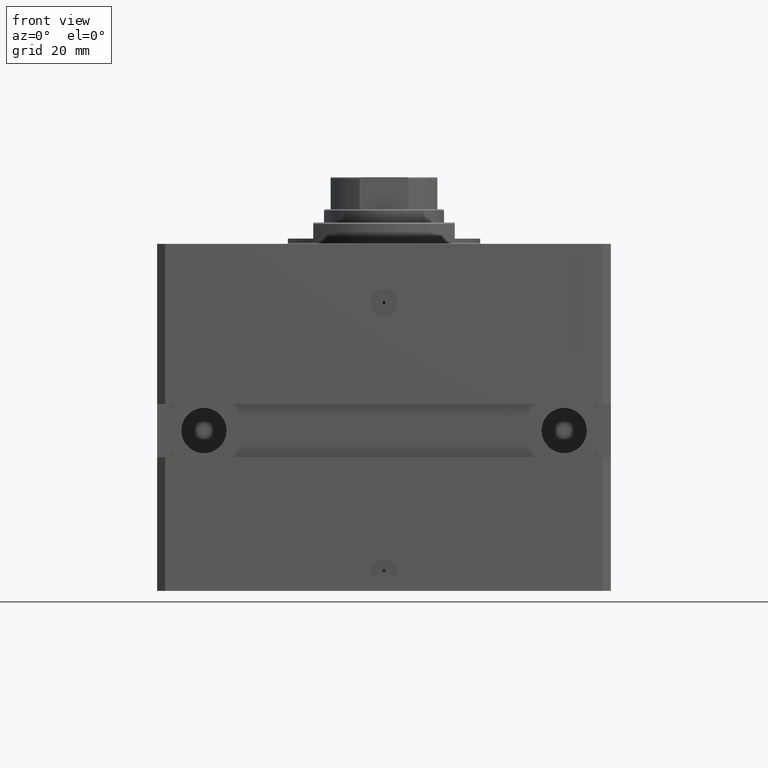
[diagram: clean part render]
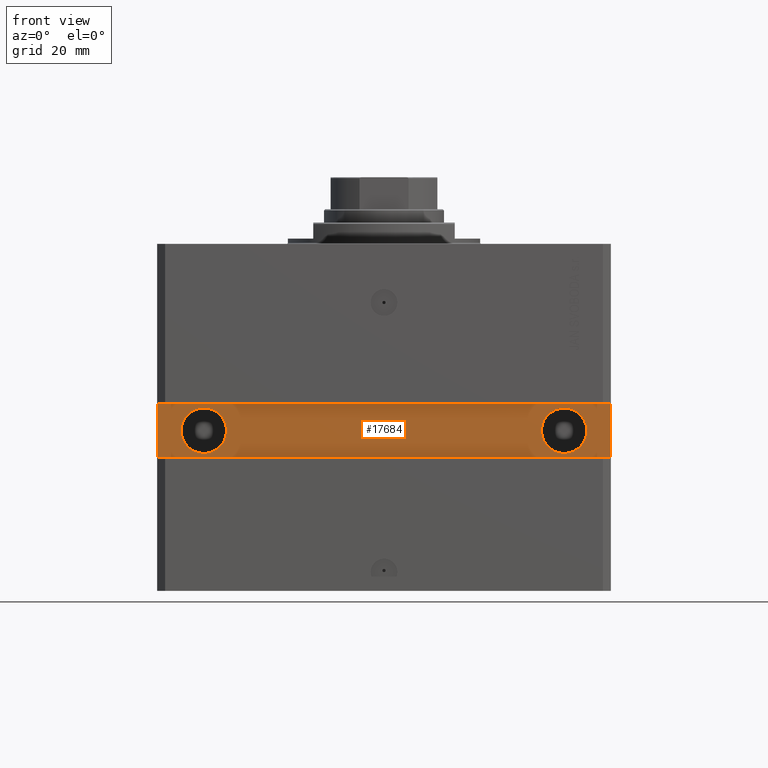
[diagram: same view with one face highlighted and labeled with its STEP entity id]
A machine part, front view. The second image highlights one B-rep face of the part: STEP entity #17684.
In plain terms, the highlighted planar face has unit normal (0, -1, 0).
Its self-contained STEP definition (entity closure, byte-faithful):
#287 = AXIS2_PLACEMENT_3D ( 'NONE', #15050, #45165, #26300 ) ;
#544 = FACE_BOUND ( 'NONE', #3176, .T. ) ;
#758 = AXIS2_PLACEMENT_3D ( 'NONE', #15197, #26701, #22302 ) ;
#1083 = EDGE_LOOP ( 'NONE', ( #9057, #12583 ) ) ;
#1547 = ORIENTED_EDGE ( 'NONE', *, *, #3225, .T. ) ;
#1859 = CIRCLE ( 'NONE', #14381, 8.500000000000000000 ) ;
#2360 = EDGE_CURVE ( 'NONE', #30379, #19704, #37229, .T. ) ;
#3176 = EDGE_LOOP ( 'NONE', ( #32283, #10011 ) ) ;
#3225 = EDGE_CURVE ( 'NONE', #48187, #42201, #41106, .T. ) ;
#4580 = CARTESIAN_POINT ( 'NONE',  ( -85.00000000000001421, -65.00000000000001421, -80.00000000000001421 ) ) ;
#7447 = FACE_BOUND ( 'NONE', #1083, .T. ) ;
#7683 = FACE_OUTER_BOUND ( 'NONE', #30441, .T. ) ;
#8765 = CARTESIAN_POINT ( 'NONE',  ( -85.00000000000001421, -65.00000000000001421, -60.00000000000002842 ) ) ;
#9057 = ORIENTED_EDGE ( 'NONE', *, *, #13415, .F. ) ;
#10011 = ORIENTED_EDGE ( 'NONE', *, *, #17182, .F. ) ;
#11799 = VECTOR ( 'NONE', #31147, 1000.000000000000000 ) ;
#12583 = ORIENTED_EDGE ( 'NONE', *, *, #48035, .F. ) ;
#12786 = CARTESIAN_POINT ( 'NONE',  ( 85.00000000000001421, -64.99999999999998579, -59.99999999999998579 ) ) ;
#13415 = EDGE_CURVE ( 'NONE', #31784, #15652, #28815, .T. ) ;
#14381 = AXIS2_PLACEMENT_3D ( 'NONE', #33535, #48227, #25694 ) ;
#14918 = ORIENTED_EDGE ( 'NONE', *, *, #17862, .T. ) ;
#15050 = CARTESIAN_POINT ( 'NONE',  ( 67.50000000000002842, -64.99999999999998579, -70.00000000000000000 ) ) ;
#15197 = CARTESIAN_POINT ( 'NONE',  ( 67.50000000000002842, -64.99999999999998579, -70.00000000000000000 ) ) ;
#15652 = VERTEX_POINT ( 'NONE', #25590 ) ;
#15730 = CARTESIAN_POINT ( 'NONE',  ( 1.084072457370145048E-14, -65.00000000000000000, 0.000000000000000000 ) ) ;
#15965 = CARTESIAN_POINT ( 'NONE',  ( -85.00000000000001421, -65.00000000000001421, -80.00000000000001421 ) ) ;
#16840 = DIRECTION ( 'NONE',  ( 1.000000000000000000, 0.000000000000000000, 0.000000000000000000 ) ) ;
#17182 = EDGE_CURVE ( 'NONE', #46761, #39948, #33655, .T. ) ;
#17684 = ADVANCED_FACE ( 'NONE', ( #544, #7447, #7683 ), #34356, .T. ) ;
#17757 = CARTESIAN_POINT ( 'NONE',  ( 85.00000000000001421, -64.99999999999998579, -80.00000000000001421 ) ) ;
#17862 = EDGE_CURVE ( 'NONE', #19704, #48187, #35071, .T. ) ;
#19704 = VERTEX_POINT ( 'NONE', #42650 ) ;
#20745 = DIRECTION ( 'NONE',  ( 1.101411730780568590E-16, -1.000000000000000000, 0.000000000000000000 ) ) ;
#21796 = CARTESIAN_POINT ( 'NONE',  ( 85.00000000000001421, -64.99999999999998579, -80.00000000000001421 ) ) ;
#22302 = DIRECTION ( 'NONE',  ( 1.000000000000000000, 0.000000000000000000, 0.000000000000000000 ) ) ;
#22483 = CARTESIAN_POINT ( 'NONE',  ( -85.00000000000001421, -65.00000000000001421, -60.00000000000002842 ) ) ;
#24893 = AXIS2_PLACEMENT_3D ( 'NONE', #43288, #20745, #16840 ) ;
#25590 = CARTESIAN_POINT ( 'NONE',  ( -75.99999999999997158, -65.00000000000001421, -70.00000000000001421 ) ) ;
#25694 = DIRECTION ( 'NONE',  ( 1.000000000000000000, 0.000000000000000000, 0.000000000000000000 ) ) ;
#26300 = DIRECTION ( 'NONE',  ( 1.000000000000000000, 0.000000000000000000, 0.000000000000000000 ) ) ;
#26701 = DIRECTION ( 'NONE',  ( 1.041232428609250764E-16, -1.000000000000000000, -6.162975822039154730E-33 ) ) ;
#27723 = DIRECTION ( 'NONE',  ( -1.000000000000000000, -1.632680918566406300E-16, -2.449021377849609204E-16 ) ) ;
#28278 = ORIENTED_EDGE ( 'NONE', *, *, #41987, .T. ) ;
#28815 = CIRCLE ( 'NONE', #24893, 8.500000000000000000 ) ;
#29390 = VECTOR ( 'NONE', #41580, 1000.000000000000000 ) ;
#30379 = VERTEX_POINT ( 'NONE', #17757 ) ;
#30441 = EDGE_LOOP ( 'NONE', ( #28278, #34776, #14918, #1547 ) ) ;
#30689 = DIRECTION ( 'NONE',  ( 1.632680918566406300E-16, -1.000000000000000000, 0.000000000000000000 ) ) ;
#31147 = DIRECTION ( 'NONE',  ( 1.000000000000000000, 1.632680918566406300E-16, 0.000000000000000000 ) ) ;
#31159 = DIRECTION ( 'NONE',  ( 1.000000000000000000, 1.632680918566406300E-16, 0.000000000000000000 ) ) ;
#31784 = VERTEX_POINT ( 'NONE', #40925 ) ;
#32283 = ORIENTED_EDGE ( 'NONE', *, *, #48374, .F. ) ;
#33535 = CARTESIAN_POINT ( 'NONE',  ( -67.49999999999997158, -65.00000000000001421, -70.00000000000001421 ) ) ;
#33655 = CIRCLE ( 'NONE', #758, 8.499999999999992895 ) ;
#34356 = PLANE ( 'NONE',  #40675 ) ;
#34447 = VECTOR ( 'NONE', #27723, 1000.000000000000000 ) ;
#34776 = ORIENTED_EDGE ( 'NONE', *, *, #2360, .T. ) ;
#35071 = LINE ( 'NONE', #12786, #34447 ) ;
#37229 = LINE ( 'NONE', #21796, #46564 ) ;
#37718 = DIRECTION ( 'NONE',  ( 0.000000000000000000, 0.000000000000000000, 1.000000000000000000 ) ) ;
#39444 = CARTESIAN_POINT ( 'NONE',  ( 76.00000000000002842, -64.99999999999998579, -70.00000000000000000 ) ) ;
#39948 = VERTEX_POINT ( 'NONE', #39444 ) ;
#40675 = AXIS2_PLACEMENT_3D ( 'NONE', #15730, #30689, #31159 ) ;
#40925 = CARTESIAN_POINT ( 'NONE',  ( -58.99999999999997868, -65.00000000000001421, -70.00000000000001421 ) ) ;
#41106 = LINE ( 'NONE', #22483, #29390 ) ;
#41580 = DIRECTION ( 'NONE',  ( 0.000000000000000000, 0.000000000000000000, -1.000000000000000000 ) ) ;
#41987 = EDGE_CURVE ( 'NONE', #42201, #30379, #42424, .T. ) ;
#42201 = VERTEX_POINT ( 'NONE', #4580 ) ;
#42424 = LINE ( 'NONE', #15965, #11799 ) ;
#42532 = CIRCLE ( 'NONE', #287, 8.499999999999992895 ) ;
#42650 = CARTESIAN_POINT ( 'NONE',  ( 85.00000000000001421, -64.99999999999998579, -59.99999999999998579 ) ) ;
#43288 = CARTESIAN_POINT ( 'NONE',  ( -67.49999999999997158, -65.00000000000001421, -70.00000000000001421 ) ) ;
#44551 = CARTESIAN_POINT ( 'NONE',  ( 59.00000000000003553, -64.99999999999998579, -70.00000000000000000 ) ) ;
#45165 = DIRECTION ( 'NONE',  ( 1.041232428609250764E-16, -1.000000000000000000, -6.162975822039154730E-33 ) ) ;
#46564 = VECTOR ( 'NONE', #37718, 1000.000000000000000 ) ;
#46761 = VERTEX_POINT ( 'NONE', #44551 ) ;
#48035 = EDGE_CURVE ( 'NONE', #15652, #31784, #1859, .T. ) ;
#48187 = VERTEX_POINT ( 'NONE', #8765 ) ;
#48227 = DIRECTION ( 'NONE',  ( 1.101411730780568590E-16, -1.000000000000000000, 0.000000000000000000 ) ) ;
#48374 = EDGE_CURVE ( 'NONE', #39948, #46761, #42532, .T. ) ;